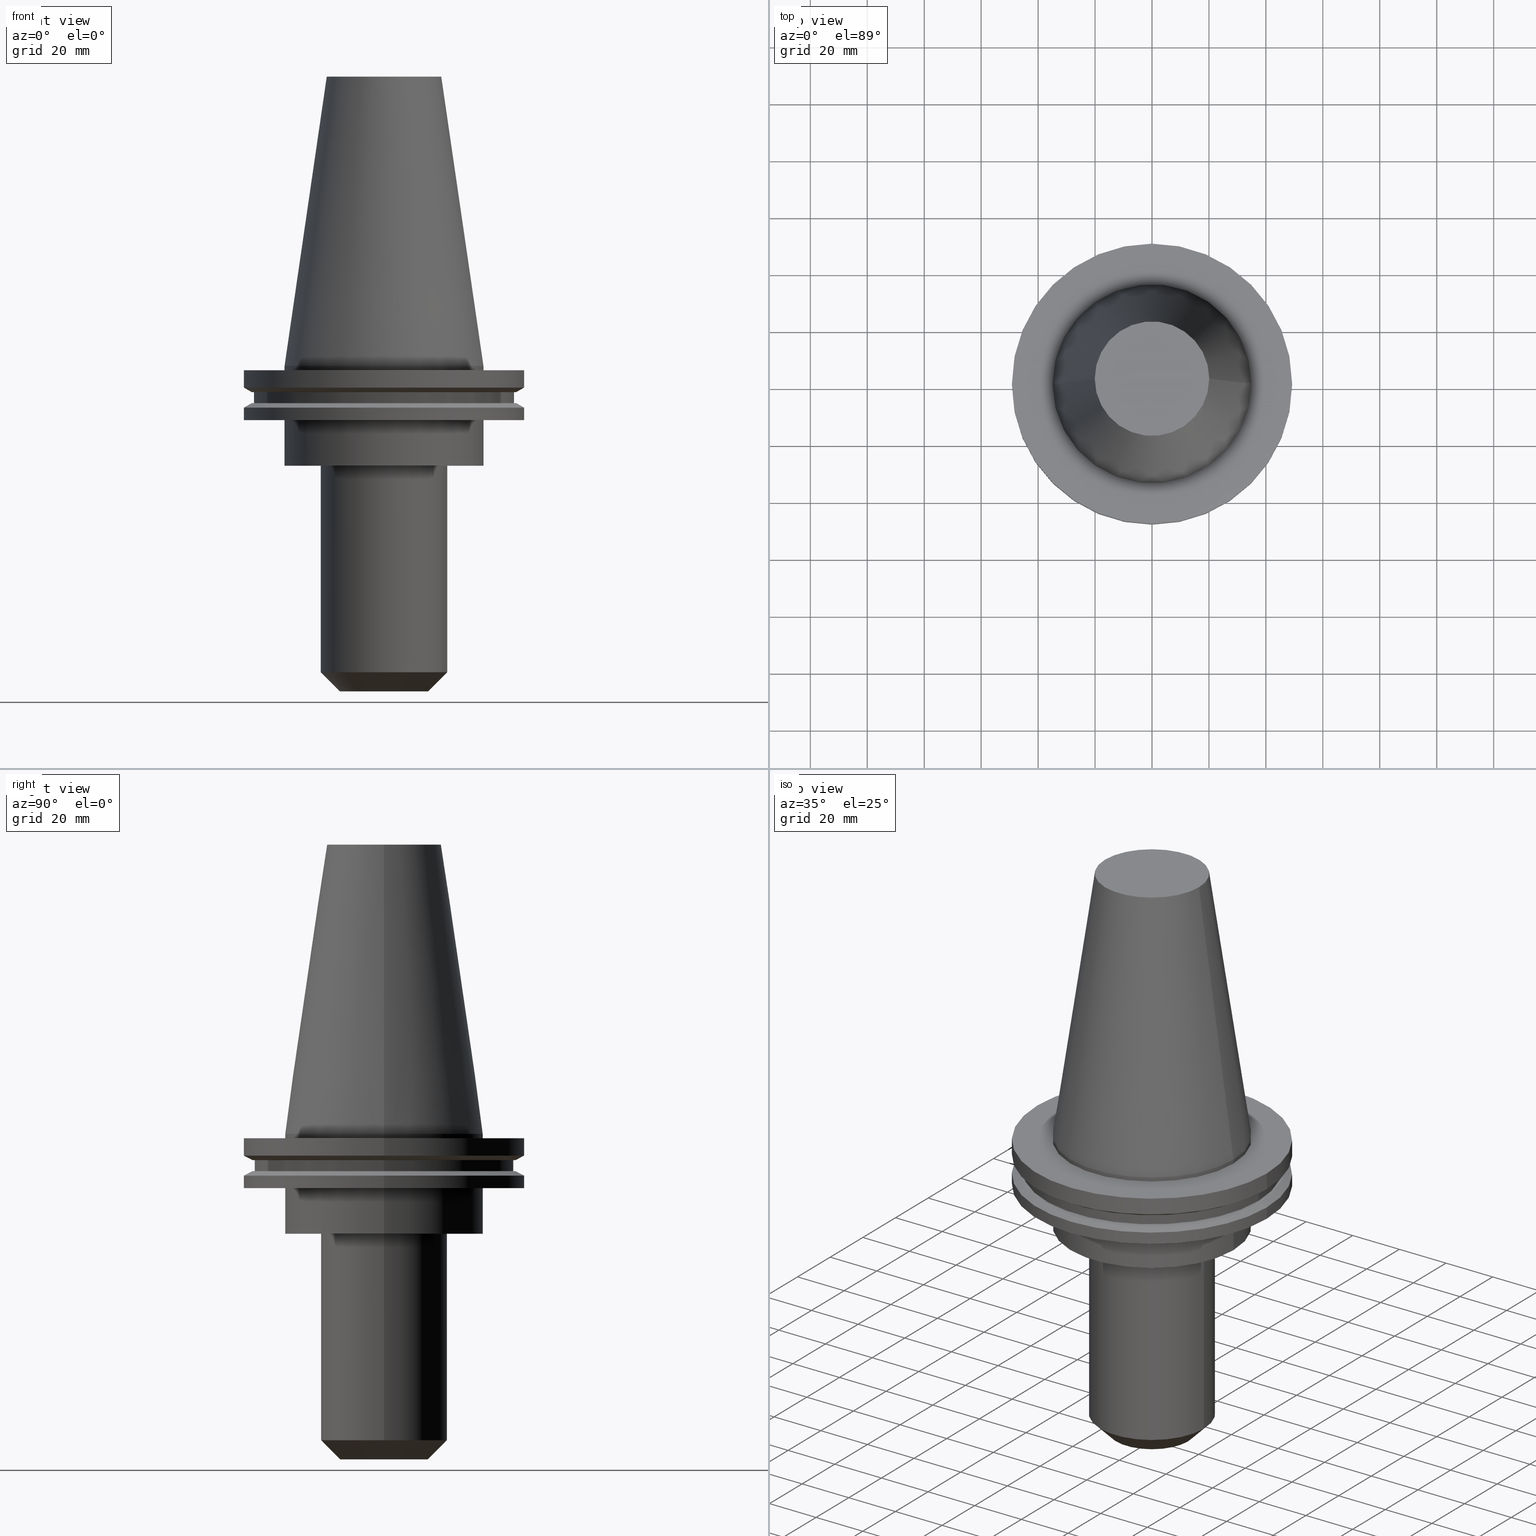
[diagram: canonical four-view strip — front | top / right | iso, engineering-drawing reading convention]
A machine part, canonical four-view strip (front | top / right | iso — engineering-drawing reading convention). The complete STEP part file that produces these views, byte-faithful:
ISO-10303-21;
HEADER;
FILE_DESCRIPTION (( 'STEP AP203' ),
    '1' );
FILE_NAME ('BCV50-EM_750-4_5.stp',
    '2022-03-03T16:44:57',
    ( '' ),
    ( '' ),
    'SwSTEP 2.0',
    'SolidWorks 2021',
    '' );
FILE_SCHEMA (( 'CONFIG_CONTROL_DESIGN' ));
ENDSEC;

DATA;
#1 = DIRECTION ( 'NONE',  ( -0.000000000000000000, -0.000000000000000000, 1.000000000000000000 ) ) ;
#2 = DIRECTION ( 'NONE',  ( -0.000000000000000000, -0.000000000000000000, 1.000000000000000000 ) ) ;
#3 = EDGE_LOOP ( 'NONE', ( #787, #19, #239, #236 ) ) ;
#4 = CARTESIAN_POINT ( 'NONE',  ( 0.000000000000000000, 0.000000000000000000, -19.04999999999999716 ) ) ;
#5 = EDGE_CURVE ( 'NONE', #225, #41, #525, .T. ) ;
#6 = VECTOR ( 'NONE', #253, 1000.000000000000000 ) ;
#7 = CARTESIAN_POINT ( 'NONE',  ( 0.000000000000000000, 0.000000000000000000, 101.5999999999999943 ) ) ;
#8 = PERSON_AND_ORGANIZATION_ROLE ( 'design_owner' ) ;
#9 = DIRECTION ( 'NONE',  ( -0.000000000000000000, -0.000000000000000000, 1.000000000000000000 ) ) ;
#10 = PERSON_AND_ORGANIZATION ( #803, #392 ) ;
#11 = EDGE_CURVE ( 'NONE', #772, #103, #732, .T. ) ;
#12 = CARTESIAN_POINT ( 'NONE',  ( 0.000000000000000000, 0.000000000000000000, -7.602389855251287187 ) ) ;
#13 = ORIENTED_EDGE ( 'NONE', *, *, #208, .F. ) ;
#14 = CARTESIAN_POINT ( 'NONE',  ( 0.000000000000000000, 0.000000000000000000, -14.65761014474876944 ) ) ;
#15 = PERSON_AND_ORGANIZATION ( #803, #392 ) ;
#16 = APPROVAL_PERSON_ORGANIZATION ( #10, #241, #282 ) ;
#17 = EDGE_CURVE ( 'NONE', #128, #108, #464, .T. ) ;
#18 = AXIS2_PLACEMENT_3D ( 'NONE', #462, #377, #409 ) ;
#19 = ORIENTED_EDGE ( 'NONE', *, *, #649, .T. ) ;
#20 = CIRCLE ( 'NONE', #130, 45.64500000000000313 ) ;
#21 = VERTEX_POINT ( 'NONE', #721 ) ;
#22 = DIRECTION ( 'NONE',  ( 0.000000000000000000, 0.000000000000000000, -1.000000000000000000 ) ) ;
#23 = ORIENTED_EDGE ( 'NONE', *, *, #303, .T. ) ;
#24 = EDGE_CURVE ( 'NONE', #25, #772, #390, .T. ) ;
#25 = VERTEX_POINT ( 'NONE', #712 ) ;
#26 = CARTESIAN_POINT ( 'NONE',  ( -15.52499999999998259, 1.901264155676263727E-15, -114.3000000000000114 ) ) ;
#27 = ORIENTED_EDGE ( 'NONE', *, *, #719, .T. ) ;
#28 = ADVANCED_FACE ( 'NONE', ( #655 ), #729, .F. ) ;
#29 = EDGE_LOOP ( 'NONE', ( #176, #23 ) ) ;
#30 = DIRECTION ( 'NONE',  ( -0.000000000000000000, -0.000000000000000000, 1.000000000000000000 ) ) ;
#31 = AXIS2_PLACEMENT_3D ( 'NONE', #186, #648, #381 ) ;
#32 = AXIS2_PLACEMENT_3D ( 'NONE', #141, #228, #752 ) ;
#33 = AXIS2_PLACEMENT_3D ( 'NONE', #323, #2, #521 ) ;
#34 = EDGE_LOOP ( 'NONE', ( #100, #573 ) ) ;
#35 = CARTESIAN_POINT ( 'NONE',  ( 15.52499999999998259, 0.000000000000000000, -114.3000000000000114 ) ) ;
#36 = ORIENTED_EDGE ( 'NONE', *, *, #119, .T. ) ;
#37 = DIRECTION ( 'NONE',  ( 0.1443082272672999988, 1.767266086135277066E-17, -0.9895327864921755756 ) ) ;
#38 = CALENDAR_DATE ( 2022, 3, 3 ) ;
#39 = ORIENTED_EDGE ( 'NONE', *, *, #477, .F. ) ;
#40 = CARTESIAN_POINT ( 'NONE',  ( 0.000000000000000000, 49.21499999999998920, -19.04999999999999716 ) ) ;
#41 = VERTEX_POINT ( 'NONE', #584 ) ;
#42 = ADVANCED_FACE ( 'NONE', ( #138 ), #304, .T. ) ;
#43 = DIRECTION ( 'NONE',  ( 1.000000000000000000, 0.000000000000000000, 0.000000000000000000 ) ) ;
#44 = APPROVAL_ROLE ( '' ) ;
#45 = CIRCLE ( 'NONE', #99, 45.64500000000000313 ) ;
#46 = EDGE_LOOP ( 'NONE', ( #536, #157 ) ) ;
#47 = FACE_OUTER_BOUND ( 'NONE', #34, .T. ) ;
#48 = DATE_AND_TIME ( #38, #596 ) ;
#49 = DIRECTION ( 'NONE',  ( 1.000000000000000000, 0.000000000000000000, 0.000000000000000000 ) ) ;
#50 = CARTESIAN_POINT ( 'NONE',  ( 0.000000000000000000, 0.000000000000000000, -14.65761014474876944 ) ) ;
#51 = FACE_OUTER_BOUND ( 'NONE', #566, .T. ) ;
#52 = COORDINATED_UNIVERSAL_TIME_OFFSET ( 6, 0, .BEHIND. ) ;
#53 = EDGE_CURVE ( 'NONE', #225, #312, #187, .T. ) ;
#54 = DIRECTION ( 'NONE',  ( 1.000000000000000000, 0.000000000000000000, 0.000000000000000000 ) ) ;
#55 = FACE_OUTER_BOUND ( 'NONE', #265, .T. ) ;
#56 = CIRCLE ( 'NONE', #216, 34.92499999999999005 ) ;
#57 = AXIS2_PLACEMENT_3D ( 'NONE', #709, #779, #183 ) ;
#58 = DIRECTION ( 'NONE',  ( -0.000000000000000000, -0.000000000000000000, 1.000000000000000000 ) ) ;
#59 = DIRECTION ( 'NONE',  ( -0.000000000000000000, -0.000000000000000000, 1.000000000000000000 ) ) ;
#60 = CIRCLE ( 'NONE', #470, 9.524999999999989697 ) ;
#61 = EDGE_CURVE ( 'NONE', #632, #359, #672, .T. ) ;
#62 = DIRECTION ( 'NONE',  ( -0.000000000000000000, -0.000000000000000000, 1.000000000000000000 ) ) ;
#63 = PLANE ( 'NONE',  #122 ) ;
#64 = VERTEX_POINT ( 'NONE', #527 ) ;
#65 = LINE ( 'NONE', #466, #406 ) ;
#66 = PLANE ( 'NONE',  #78 ) ;
#67 = FACE_OUTER_BOUND ( 'NONE', #293, .T. ) ;
#68 = ORIENTED_EDGE ( 'NONE', *, *, #635, .F. ) ;
#69 = CARTESIAN_POINT ( 'NONE',  ( -22.22499999999999432, 2.721777511104992060E-15, -35.04999999999999716 ) ) ;
#70 = DIRECTION ( 'NONE',  ( 1.000000000000000000, 0.000000000000000000, 0.000000000000000000 ) ) ;
#71 = DIRECTION ( 'NONE',  ( -0.000000000000000000, -0.000000000000000000, 1.000000000000000000 ) ) ;
#72 = AXIS2_PLACEMENT_3D ( 'NONE', #837, #759, #102 ) ;
#73 = AXIS2_PLACEMENT_3D ( 'NONE', #785, #59, #328 ) ;
#74 = CARTESIAN_POINT ( 'NONE',  ( 0.000000000000000000, 0.000000000000000000, 101.5999999999999943 ) ) ;
#75 = EDGE_CURVE ( 'NONE', #310, #754, #538, .T. ) ;
#76 = CARTESIAN_POINT ( 'NONE',  ( 0.000000000000000000, 0.000000000000000000, -114.3000000000000114 ) ) ;
#77 = PLANE ( 'NONE',  #285 ) ;
#78 = AXIS2_PLACEMENT_3D ( 'NONE', #581, #263, #513 ) ;
#79 = AXIS2_PLACEMENT_3D ( 'NONE', #124, #778, #132 ) ;
#80 = CYLINDRICAL_SURFACE ( 'NONE', #668, 34.92499999999999005 ) ;
#81 = ORIENTED_EDGE ( 'NONE', *, *, #649, .F. ) ;
#82 = APPROVAL ( #718, 'UNSPECIFIED' ) ;
#83 = DIRECTION ( 'NONE',  ( -0.000000000000000000, -0.000000000000000000, 1.000000000000000000 ) ) ;
#84 = CARTESIAN_POINT ( 'NONE',  ( -46.43919780457007818, 5.857130358318727293E-15, -9.204999999999991189 ) ) ;
#85 = ORIENTED_EDGE ( 'NONE', *, *, #147, .F. ) ;
#86 = DIRECTION ( 'NONE',  ( 0.000000000000000000, 0.000000000000000000, -1.000000000000000000 ) ) ;
#87 = EDGE_CURVE ( 'NONE', #164, #312, #568, .T. ) ;
#88 = VECTOR ( 'NONE', #163, 1000.000000000000000 ) ;
#89 = ORIENTED_EDGE ( 'NONE', *, *, #450, .F. ) ;
#90 = EDGE_LOOP ( 'NONE', ( #623, #273, #523, #529 ) ) ;
#91 = FACE_BOUND ( 'NONE', #417, .T. ) ;
#92 = ADVANCED_FACE ( 'NONE', ( #397, #180 ), #63, .F. ) ;
#93 = ORIENTED_EDGE ( 'NONE', *, *, #419, .T. ) ;
#94 = EDGE_LOOP ( 'NONE', ( #826, #683, #707, #422 ) ) ;
#95 = DIRECTION ( 'NONE',  ( -1.000000000000000000, 0.000000000000000000, 0.000000000000000000 ) ) ;
#96 = VERTEX_POINT ( 'NONE', #515 ) ;
#97 = CARTESIAN_POINT ( 'NONE',  ( -49.21499999999998920, 6.027099222003697037E-15, -14.65761014474876944 ) ) ;
#98 = CC_DESIGN_APPROVAL ( #199, ( #341 ) ) ;
#99 = AXIS2_PLACEMENT_3D ( 'NONE', #580, #387, #770 ) ;
#100 = ORIENTED_EDGE ( 'NONE', *, *, #854, .F. ) ;
#101 = ADVANCED_FACE ( 'NONE', ( #195 ), #255, .F. ) ;
#102 = DIRECTION ( 'NONE',  ( -1.000000000000000000, 0.000000000000000000, 0.000000000000000000 ) ) ;
#103 = VERTEX_POINT ( 'NONE', #271 ) ;
#104 = LINE ( 'NONE', #774, #738 ) ;
#105 = ORIENTED_EDGE ( 'NONE', *, *, #667, .T. ) ;
#106 = DIRECTION ( 'NONE',  ( -0.000000000000000000, -0.000000000000000000, 1.000000000000000000 ) ) ;
#107 = PERSON_AND_ORGANIZATION ( #803, #392 ) ;
#108 = VERTEX_POINT ( 'NONE', #532 ) ;
#109 = LINE ( 'NONE', #26, #576 ) ;
#110 = ORIENTED_EDGE ( 'NONE', *, *, #308, .F. ) ;
#111 = ADVANCED_FACE ( 'NONE', ( #318, #401 ), #66, .F. ) ;
#112 = LOCAL_TIME ( 10, 44, 57.00000000000000000, #452 ) ;
#113 = CARTESIAN_POINT ( 'NONE',  ( 0.000000000000000000, 0.000000000000000000, 101.5999999999999943 ) ) ;
#114 = DATE_AND_TIME ( #771, #664 ) ;
#115 = VECTOR ( 'NONE', #343, 1000.000000000000000 ) ;
#116 = CIRCLE ( 'NONE', #598, 49.21499999999999631 ) ;
#117 = AXIS2_PLACEMENT_3D ( 'NONE', #447, #320, #259 ) ;
#118 = DIRECTION ( 'NONE',  ( 1.000000000000000000, 0.000000000000000000, 0.000000000000000000 ) ) ;
#119 = EDGE_CURVE ( 'NONE', #334, #231, #442, .T. ) ;
#120 = CYLINDRICAL_SURFACE ( 'NONE', #172, 49.21499999999999631 ) ;
#121 = DATE_TIME_ROLE ( 'classification_date' ) ;
#122 = AXIS2_PLACEMENT_3D ( 'NONE', #459, #322, #847 ) ;
#123 = AXIS2_PLACEMENT_3D ( 'NONE', #651, #58, #49 ) ;
#124 = CARTESIAN_POINT ( 'NONE',  ( 0.000000000000000000, 0.000000000000000000, 0.000000000000000000 ) ) ;
#125 = DIRECTION ( 'NONE',  ( 1.000000000000000000, 0.000000000000000000, 0.000000000000000000 ) ) ;
#126 = APPROVAL_DATE_TIME ( #114, #82 ) ;
#127 = FACE_OUTER_BOUND ( 'NONE', #637, .T. ) ;
#128 = VERTEX_POINT ( 'NONE', #784 ) ;
#129 = CARTESIAN_POINT ( 'NONE',  ( 9.524999999999995026, 0.000000000000000000, -114.2999999999999972 ) ) ;
#130 = AXIS2_PLACEMENT_3D ( 'NONE', #680, #686, #601 ) ;
#131 = AXIS2_PLACEMENT_3D ( 'NONE', #849, #654, #266 ) ;
#132 = DIRECTION ( 'NONE',  ( -1.000000000000000000, 0.000000000000000000, 0.000000000000000000 ) ) ;
#133 = CYLINDRICAL_SURFACE ( 'NONE', #171, 34.92499999999999005 ) ;
#134 = VERTEX_POINT ( 'NONE', #191 ) ;
#135 = AXIS2_PLACEMENT_3D ( 'NONE', #753, #361, #685 ) ;
#136 = FACE_OUTER_BOUND ( 'NONE', #743, .T. ) ;
#137 = LINE ( 'NONE', #556, #88 ) ;
#138 = FACE_OUTER_BOUND ( 'NONE', #696, .T. ) ;
#139 = AXIS2_PLACEMENT_3D ( 'NONE', #257, #790, #118 ) ;
#140 = CARTESIAN_POINT ( 'NONE',  ( 0.000000000000000000, 0.000000000000000000, 101.5999999999999943 ) ) ;
#141 = CARTESIAN_POINT ( 'NONE',  ( 0.000000000000000000, 0.000000000000000000, 0.000000000000000000 ) ) ;
#142 = ADVANCED_FACE ( 'NONE', ( #127, #278 ), #804, .F. ) ;
#143 = CYLINDRICAL_SURFACE ( 'NONE', #219, 45.64500000000000313 ) ;
#144 = CARTESIAN_POINT ( 'NONE',  ( -49.21499999999999631, 6.027099222003697826E-15, -1.499999999999987566 ) ) ;
#145 = CONICAL_SURFACE ( 'NONE', #461, 49.21499999999998920, 1.047197551196554333 ) ;
#146 = DIRECTION ( 'NONE',  ( -0.000000000000000000, -0.000000000000000000, 1.000000000000000000 ) ) ;
#147 = EDGE_CURVE ( 'NONE', #21, #284, #731, .T. ) ;
#148 = ORIENTED_EDGE ( 'NONE', *, *, #557, .F. ) ;
#149 = EDGE_CURVE ( 'NONE', #484, #440, #554, .T. ) ;
#150 = DIRECTION ( 'NONE',  ( 0.000000000000000000, -0.000000000000000000, 1.000000000000000000 ) ) ;
#151 =( NAMED_UNIT ( * ) PLANE_ANGLE_UNIT ( ) SI_UNIT ( $, .RADIAN. ) );
#152 = EDGE_LOOP ( 'NONE', ( #687, #27, #608, #838 ) ) ;
#153 = CARTESIAN_POINT ( 'NONE',  ( 20.10819343178871321, 3.369811209154858606E-15, 101.5999999999999801 ) ) ;
#154 = EDGE_LOOP ( 'NONE', ( #105, #351 ) ) ;
#155 = ADVANCED_FACE ( 'NONE', ( #223 ), #360, .T. ) ;
#156 = APPLICATION_CONTEXT ( 'configuration controlled 3d designs of mechanical parts and assemblies' ) ;
#157 = ORIENTED_EDGE ( 'NONE', *, *, #87, .T. ) ;
#158 = VERTEX_POINT ( 'NONE', #677 ) ;
#159 = DIRECTION ( 'NONE',  ( -0.000000000000000000, -0.000000000000000000, 1.000000000000000000 ) ) ;
#160 = CARTESIAN_POINT ( 'NONE',  ( -22.22499999999999787, 2.721777511104992849E-15, -107.5999999999999943 ) ) ;
#161 = AXIS2_PLACEMENT_3D ( 'NONE', #855, #380, #644 ) ;
#162 = EDGE_LOOP ( 'NONE', ( #681, #305, #372, #726 ) ) ;
#163 = DIRECTION ( 'NONE',  ( -0.000000000000000000, -0.000000000000000000, 1.000000000000000000 ) ) ;
#164 = VERTEX_POINT ( 'NONE', #144 ) ;
#165 = CARTESIAN_POINT ( 'NONE',  ( 0.000000000000000000, 0.000000000000000000, -114.3000000000000114 ) ) ;
#166 = APPROVAL_ROLE ( '' ) ;
#167 = ORIENTED_EDGE ( 'NONE', *, *, #489, .F. ) ;
#168 = DIRECTION ( 'NONE',  ( -0.000000000000000000, -0.000000000000000000, 1.000000000000000000 ) ) ;
#169 = ORIENTED_EDGE ( 'NONE', *, *, #75, .T. ) ;
#170 = FACE_OUTER_BOUND ( 'NONE', #307, .T. ) ;
#171 = AXIS2_PLACEMENT_3D ( 'NONE', #398, #533, #582 ) ;
#172 = AXIS2_PLACEMENT_3D ( 'NONE', #113, #383, #414 ) ;
#173 = ORIENTED_EDGE ( 'NONE', *, *, #512, .F. ) ;
#174 = DIRECTION ( 'NONE',  ( 1.000000000000000000, 0.000000000000000000, 0.000000000000000000 ) ) ;
#175 = EDGE_LOOP ( 'NONE', ( #362, #230 ) ) ;
#176 = ORIENTED_EDGE ( 'NONE', *, *, #557, .T. ) ;
#177 = CARTESIAN_POINT ( 'NONE',  ( 22.22499999999999432, 0.000000000000000000, -35.04999999999999716 ) ) ;
#178 = ORIENTED_EDGE ( 'NONE', *, *, #419, .F. ) ;
#179 = DIRECTION ( 'NONE',  ( 1.000000000000000000, 0.000000000000000000, 0.000000000000000000 ) ) ;
#180 = FACE_BOUND ( 'NONE', #29, .T. ) ;
#181 = CC_DESIGN_DATE_AND_TIME_ASSIGNMENT ( #48, #121, ( #393 ) ) ;
#182 = ORIENTED_EDGE ( 'NONE', *, *, #264, .T. ) ;
#183 = DIRECTION ( 'NONE',  ( 1.000000000000000000, 0.000000000000000000, 0.000000000000000000 ) ) ;
#184 = AXIS2_PLACEMENT_3D ( 'NONE', #704, #375, #316 ) ;
#185 = CIRCLE ( 'NONE', #326, 49.21499999999998920 ) ;
#186 = CARTESIAN_POINT ( 'NONE',  ( 0.000000000000000000, 46.43919780457007818, -9.204999999999998295 ) ) ;
#187 = LINE ( 'NONE', #725, #453 ) ;
#188 = ORIENTED_EDGE ( 'NONE', *, *, #661, .T. ) ;
#189 = EDGE_CURVE ( 'NONE', #329, #227, #201, .T. ) ;
#190 = DIRECTION ( 'NONE',  ( -0.000000000000000000, -0.000000000000000000, 1.000000000000000000 ) ) ;
#191 = CARTESIAN_POINT ( 'NONE',  ( 34.92499999999999716, 0.000000000000000000, -35.04999999999999716 ) ) ;
#192 = ORIENTED_EDGE ( 'NONE', *, *, #600, .F. ) ;
#193 = CARTESIAN_POINT ( 'NONE',  ( 0.000000000000000000, 0.000000000000000000, -35.04999999999999716 ) ) ;
#194 = EDGE_CURVE ( 'NONE', #312, #164, #116, .T. ) ;
#195 = FACE_OUTER_BOUND ( 'NONE', #154, .T. ) ;
#196 = CARTESIAN_POINT ( 'NONE',  ( 0.000000000000000000, 0.000000000000000000, 101.5999999999999943 ) ) ;
#197 = ORIENTED_EDGE ( 'NONE', *, *, #444, .F. ) ;
#198 = DIRECTION ( 'NONE',  ( -0.000000000000000000, -0.000000000000000000, 1.000000000000000000 ) ) ;
#199 = APPROVAL ( #233, 'UNSPECIFIED' ) ;
#200 = CARTESIAN_POINT ( 'NONE',  ( 34.92499999999999716, 0.000000000000000000, -19.04999999999999716 ) ) ;
#201 = CIRCLE ( 'NONE', #796, 49.21499999999998920 ) ;
#202 = DIRECTION ( 'NONE',  ( 1.000000000000000000, 0.000000000000000000, 0.000000000000000000 ) ) ;
#203 = CYLINDRICAL_SURFACE ( 'NONE', #548, 49.21499999999999631 ) ;
#204 = DIRECTION ( 'NONE',  ( -0.000000000000000000, -0.000000000000000000, 1.000000000000000000 ) ) ;
#205 = CARTESIAN_POINT ( 'NONE',  ( 34.92499999999999005, 0.000000000000000000, -1.499999999999987566 ) ) ;
#206 = DIRECTION ( 'NONE',  ( -0.000000000000000000, -0.000000000000000000, 1.000000000000000000 ) ) ;
#207 = APPLICATION_PROTOCOL_DEFINITION ( 'international standard', 'config_control_design', 1994, #156 ) ;
#208 = EDGE_CURVE ( 'NONE', #317, #334, #235, .T. ) ;
#209 = FACE_OUTER_BOUND ( 'NONE', #750, .T. ) ;
#210 = DESIGN_CONTEXT ( 'detailed design', #832, 'design' ) ;
#211 = DIRECTION ( 'NONE',  ( 1.000000000000000000, 0.000000000000000000, 0.000000000000000000 ) ) ;
#212 = APPLICATION_PROTOCOL_DEFINITION ( 'international standard', 'config_control_design', 1994, #832 ) ;
#213 = EDGE_CURVE ( 'NONE', #616, #329, #609, .T. ) ;
#214 = DIRECTION ( 'NONE',  ( -0.000000000000000000, -0.000000000000000000, 1.000000000000000000 ) ) ;
#215 = ORIENTED_EDGE ( 'NONE', *, *, #61, .F. ) ;
#216 = AXIS2_PLACEMENT_3D ( 'NONE', #408, #671, #283 ) ;
#217 = CALENDAR_DATE ( 2022, 3, 3 ) ;
#218 = CIRCLE ( 'NONE', #117, 20.10819343178871321 ) ;
#219 = AXIS2_PLACEMENT_3D ( 'NONE', #798, #204, #465 ) ;
#220 = CYLINDRICAL_SURFACE ( 'NONE', #503, 49.21499999999998920 ) ;
#221 = ADVANCED_FACE ( 'NONE', ( #170 ), #299, .T. ) ;
#222 = ORIENTED_EDGE ( 'NONE', *, *, #679, .T. ) ;
#223 = FACE_OUTER_BOUND ( 'NONE', #376, .T. ) ;
#224 = DIRECTION ( 'NONE',  ( -1.000000000000000000, 0.000000000000000000, -0.000000000000000000 ) ) ;
#225 = VERTEX_POINT ( 'NONE', #621 ) ;
#226 = CARTESIAN_POINT ( 'NONE',  ( 9.524999999999989697, 0.000000000000000000, -35.04999999999999716 ) ) ;
#227 = VERTEX_POINT ( 'NONE', #827 ) ;
#228 = DIRECTION ( 'NONE',  ( -0.000000000000000000, -0.000000000000000000, 1.000000000000000000 ) ) ;
#229 = DIRECTION ( 'NONE',  ( 1.000000000000000000, 0.000000000000000000, 0.000000000000000000 ) ) ;
#230 = ORIENTED_EDGE ( 'NONE', *, *, #723, .T. ) ;
#231 = VERTEX_POINT ( 'NONE', #439 ) ;
#232 = FACE_OUTER_BOUND ( 'NONE', #775, .T. ) ;
#233 = APPROVAL_STATUS ( 'not_yet_approved' ) ;
#234 = VECTOR ( 'NONE', #850, 1000.000000000000000 ) ;
#235 = CIRCLE ( 'NONE', #546, 15.52499999999998259 ) ;
#236 = ORIENTED_EDGE ( 'NONE', *, *, #87, .F. ) ;
#237 = DIRECTION ( 'NONE',  ( -0.000000000000000000, -0.000000000000000000, 1.000000000000000000 ) ) ;
#238 = ADVANCED_FACE ( 'NONE', ( #492 ), #653, .T. ) ;
#239 = ORIENTED_EDGE ( 'NONE', *, *, #53, .T. ) ;
#240 = DIRECTION ( 'NONE',  ( -1.000000000000000000, 0.000000000000000000, 0.000000000000000000 ) ) ;
#241 = APPROVAL ( #673, 'UNSPECIFIED' ) ;
#242 = ORIENTED_EDGE ( 'NONE', *, *, #149, .T. ) ;
#243 = CARTESIAN_POINT ( 'NONE',  ( 0.000000000000000000, 0.000000000000000000, -9.204999999999991189 ) ) ;
#244 = ORIENTED_EDGE ( 'NONE', *, *, #296, .F. ) ;
#245 = AXIS2_PLACEMENT_3D ( 'NONE', #737, #146, #675 ) ;
#246 = AXIS2_PLACEMENT_3D ( 'NONE', #499, #830, #507 ) ;
#247 = CIRCLE ( 'NONE', #73, 22.22499999999999787 ) ;
#248 = PERSON_AND_ORGANIZATION ( #803, #392 ) ;
#249 = EDGE_LOOP ( 'NONE', ( #593, #840, #674, #415 ) ) ;
#250 = EDGE_CURVE ( 'NONE', #692, #96, #682, .T. ) ;
#251 = FACE_OUTER_BOUND ( 'NONE', #413, .T. ) ;
#252 = ORIENTED_EDGE ( 'NONE', *, *, #147, .T. ) ;
#253 = DIRECTION ( 'NONE',  ( 0.8660254037844273833, 0.000000000000000000, 0.5000000000000195399 ) ) ;
#254 = EDGE_CURVE ( 'NONE', #692, #284, #757, .T. ) ;
#255 = PLANE ( 'NONE',  #852 ) ;
#256 = CARTESIAN_POINT ( 'NONE',  ( 34.92499999999999716, 0.000000000000000000, 101.5999999999999943 ) ) ;
#257 = CARTESIAN_POINT ( 'NONE',  ( 0.000000000000000000, 0.000000000000000000, -35.04999999999999716 ) ) ;
#258 = EDGE_LOOP ( 'NONE', ( #244, #13 ) ) ;
#259 = DIRECTION ( 'NONE',  ( 1.000000000000000000, 0.000000000000000000, 0.000000000000000000 ) ) ;
#260 = CIRCLE ( 'NONE', #824, 34.92499999999999716 ) ;
#261 = VECTOR ( 'NONE', #9, 1000.000000000000000 ) ;
#262 = DIRECTION ( 'NONE',  ( 1.000000000000000000, 0.000000000000000000, 0.000000000000000000 ) ) ;
#263 = DIRECTION ( 'NONE',  ( 0.000000000000000000, 0.000000000000000000, -1.000000000000000000 ) ) ;
#264 = EDGE_CURVE ( 'NONE', #231, #813, #627, .T. ) ;
#265 = EDGE_LOOP ( 'NONE', ( #197, #188, #543, #676 ) ) ;
#266 = DIRECTION ( 'NONE',  ( 1.000000000000000000, 0.000000000000000000, 0.000000000000000000 ) ) ;
#267 = DIRECTION ( 'NONE',  ( -0.000000000000000000, -0.000000000000000000, 1.000000000000000000 ) ) ;
#268 = DIRECTION ( 'NONE',  ( -0.000000000000000000, -0.000000000000000000, 1.000000000000000000 ) ) ;
#269 = ORIENTED_EDGE ( 'NONE', *, *, #24, .T. ) ;
#270 = DIRECTION ( 'NONE',  ( -0.000000000000000000, -0.000000000000000000, 1.000000000000000000 ) ) ;
#271 = CARTESIAN_POINT ( 'NONE',  ( 45.64500000000000313, 0.000000000000000000, -9.204999999999991189 ) ) ;
#272 = DIRECTION ( 'NONE',  ( -0.000000000000000000, -0.000000000000000000, 1.000000000000000000 ) ) ;
#273 = ORIENTED_EDGE ( 'NONE', *, *, #335, .T. ) ;
#274 = CARTESIAN_POINT ( 'NONE',  ( 49.21499999999998920, 6.027099222003697037E-15, -14.65761014474876944 ) ) ;
#275 = EDGE_CURVE ( 'NONE', #158, #21, #104, .T. ) ;
#276 = AXIS2_PLACEMENT_3D ( 'NONE', #243, #762, #364 ) ;
#277 = DIRECTION ( 'NONE',  ( 1.000000000000000000, 0.000000000000000000, 0.000000000000000000 ) ) ;
#278 = FACE_BOUND ( 'NONE', #456, .T. ) ;
#279 = CARTESIAN_POINT ( 'NONE',  ( -45.64500000000000313, 5.589900314708094957E-15, -9.204999999999991189 ) ) ;
#280 = DIRECTION ( 'NONE',  ( -0.000000000000000000, -0.000000000000000000, 1.000000000000000000 ) ) ;
#281 = UNCERTAINTY_MEASURE_WITH_UNIT (LENGTH_MEASURE( 1.000000000000000082E-05 ), #670, 'distance_accuracy_value', 'NONE');
#282 = APPROVAL_ROLE ( '' ) ;
#283 = DIRECTION ( 'NONE',  ( 1.000000000000000000, 0.000000000000000000, 0.000000000000000000 ) ) ;
#284 = VERTEX_POINT ( 'NONE', #429 ) ;
#285 = AXIS2_PLACEMENT_3D ( 'NONE', #416, #22, #224 ) ;
#286 = CARTESIAN_POINT ( 'NONE',  ( -49.21499999999998920, 0.000000000000000000, -14.65761014474876944 ) ) ;
#287 = FACE_OUTER_BOUND ( 'NONE', #369, .T. ) ;
#288 =( GEOMETRIC_REPRESENTATION_CONTEXT ( 3 ) GLOBAL_UNCERTAINTY_ASSIGNED_CONTEXT ( ( #281 ) ) GLOBAL_UNIT_ASSIGNED_CONTEXT ( ( #670, #151, #805 ) ) REPRESENTATION_CONTEXT ( 'NONE', 'WORKASPACE' ) );
#289 = ADVANCED_FACE ( 'NONE', ( #251 ), #145, .T. ) ;
#290 = ORIENTED_EDGE ( 'NONE', *, *, #590, .T. ) ;
#291 = DIRECTION ( 'NONE',  ( 1.000000000000000000, 0.000000000000000000, 0.000000000000000000 ) ) ;
#292 = ORIENTED_EDGE ( 'NONE', *, *, #765, .F. ) ;
#293 = EDGE_LOOP ( 'NONE', ( #222, #630, #817, #475 ) ) ;
#294 = DIRECTION ( 'NONE',  ( -0.7071067811865477948, 8.659560562354936556E-17, 0.7071067811865473507 ) ) ;
#295 = FACE_OUTER_BOUND ( 'NONE', #487, .T. ) ;
#296 = EDGE_CURVE ( 'NONE', #334, #317, #340, .T. ) ;
#297 = LINE ( 'NONE', #302, #727 ) ;
#298 = CONICAL_SURFACE ( 'NONE', #395, 49.21499999999998920, 1.047197551196554333 ) ;
#299 = CONICAL_SURFACE ( 'NONE', #276, 46.43919780457007818, 1.047197551196575205 ) ;
#300 = AXIS2_PLACEMENT_3D ( 'NONE', #792, #198, #460 ) ;
#301 = ORIENTED_EDGE ( 'NONE', *, *, #275, .T. ) ;
#302 = CARTESIAN_POINT ( 'NONE',  ( 34.92499999999999005, 4.277078946022130098E-15, 0.000000000000000000 ) ) ;
#303 = EDGE_CURVE ( 'NONE', #491, #484, #472, .T. ) ;
#304 = CONICAL_SURFACE ( 'NONE', #79, 34.92499999999999005, 0.1448138465474119452 ) ;
#305 = ORIENTED_EDGE ( 'NONE', *, *, #618, .T. ) ;
#306 = LINE ( 'NONE', #570, #697 ) ;
#307 = EDGE_LOOP ( 'NONE', ( #374, #290, #742, #81 ) ) ;
#308 = EDGE_CURVE ( 'NONE', #231, #310, #625, .T. ) ;
#309 = PERSON_AND_ORGANIZATION_ROLE ( 'creator' ) ;
#310 = VERTEX_POINT ( 'NONE', #177 ) ;
#311 = CARTESIAN_POINT ( 'NONE',  ( -15.52499999999998259, 2.311520833390627894E-15, -114.3000000000000114 ) ) ;
#312 = VERTEX_POINT ( 'NONE', #423 ) ;
#313 = VECTOR ( 'NONE', #747, 1000.000000000000114 ) ;
#314 = ADVANCED_FACE ( 'NONE', ( #559, #822 ), #434, .F. ) ;
#315 = AXIS2_PLACEMENT_3D ( 'NONE', #331, #451, #457 ) ;
#316 = DIRECTION ( 'NONE',  ( 1.000000000000000000, 0.000000000000000000, 0.000000000000000000 ) ) ;
#317 = VERTEX_POINT ( 'NONE', #311 ) ;
#318 = FACE_BOUND ( 'NONE', #835, .T. ) ;
#319 = FACE_OUTER_BOUND ( 'NONE', #498, .T. ) ;
#320 = DIRECTION ( 'NONE',  ( -0.000000000000000000, -0.000000000000000000, 1.000000000000000000 ) ) ;
#321 = DATE_AND_TIME ( #437, #112 ) ;
#322 = DIRECTION ( 'NONE',  ( 0.000000000000000000, -0.000000000000000000, 1.000000000000000000 ) ) ;
#323 = CARTESIAN_POINT ( 'NONE',  ( 0.000000000000000000, 0.000000000000000000, -114.3000000000000114 ) ) ;
#324 = FACE_OUTER_BOUND ( 'NONE', #420, .T. ) ;
#325 = AXIS2_PLACEMENT_3D ( 'NONE', #421, #561, #427 ) ;
#326 = AXIS2_PLACEMENT_3D ( 'NONE', #50, #268, #660 ) ;
#327 = DIRECTION ( 'NONE',  ( -0.000000000000000000, -0.000000000000000000, 1.000000000000000000 ) ) ;
#328 = DIRECTION ( 'NONE',  ( 1.000000000000000000, 0.000000000000000000, 0.000000000000000000 ) ) ;
#329 = VERTEX_POINT ( 'NONE', #97 ) ;
#330 = ADVANCED_FACE ( 'NONE', ( #366 ), #298, .T. ) ;
#331 = CARTESIAN_POINT ( 'NONE',  ( 0.000000000000000000, 0.000000000000000000, 0.000000000000000000 ) ) ;
#332 = VECTOR ( 'NONE', #592, 1000.000000000000000 ) ;
#333 = DIRECTION ( 'NONE',  ( 0.000000000000000000, 0.000000000000000000, -1.000000000000000000 ) ) ;
#334 = VERTEX_POINT ( 'NONE', #35 ) ;
#335 = EDGE_CURVE ( 'NONE', #634, #284, #297, .T. ) ;
#336 = DIRECTION ( 'NONE',  ( 1.000000000000000000, 0.000000000000000000, 0.000000000000000000 ) ) ;
#337 = DIRECTION ( 'NONE',  ( 1.000000000000000000, 0.000000000000000000, 0.000000000000000000 ) ) ;
#338 = LINE ( 'NONE', #662, #586 ) ;
#339 = CC_DESIGN_PERSON_AND_ORGANIZATION_ASSIGNMENT ( #248, #448, ( #341 ) ) ;
#340 = CIRCLE ( 'NONE', #535, 15.52499999999998259 ) ;
#341 = PRODUCT_DEFINITION_FORMATION_WITH_SPECIFIED_SOURCE ( 'ANY', '', #562, .NOT_KNOWN. ) ;
#342 = DIRECTION ( 'NONE',  ( 1.000000000000000000, 0.000000000000000000, 0.000000000000000000 ) ) ;
#343 = DIRECTION ( 'NONE',  ( -0.000000000000000000, -0.000000000000000000, 1.000000000000000000 ) ) ;
#344 = DIRECTION ( 'NONE',  ( -0.000000000000000000, -0.000000000000000000, 1.000000000000000000 ) ) ;
#345 = CARTESIAN_POINT ( 'NONE',  ( 0.000000000000000000, 0.000000000000000000, 0.000000000000000000 ) ) ;
#346 = AXIS2_PLACEMENT_3D ( 'NONE', #643, #715, #455 ) ;
#347 = DIRECTION ( 'NONE',  ( 1.000000000000000000, 0.000000000000000000, 0.000000000000000000 ) ) ;
#348 = ORIENTED_EDGE ( 'NONE', *, *, #208, .T. ) ;
#349 = FACE_OUTER_BOUND ( 'NONE', #175, .T. ) ;
#350 = EDGE_CURVE ( 'NONE', #632, #227, #306, .T. ) ;
#351 = ORIENTED_EDGE ( 'NONE', *, *, #552, .T. ) ;
#352 = FACE_OUTER_BOUND ( 'NONE', #391, .T. ) ;
#353 = ORIENTED_EDGE ( 'NONE', *, *, #11, .T. ) ;
#354 = DIRECTION ( 'NONE',  ( -0.000000000000000000, -0.000000000000000000, 1.000000000000000000 ) ) ;
#355 = AXIS2_PLACEMENT_3D ( 'NONE', #641, #106, #125 ) ;
#356 = CC_DESIGN_DATE_AND_TIME_ASSIGNMENT ( #560, #758, ( #504 ) ) ;
#357 = AXIS2_PLACEMENT_3D ( 'NONE', #678, #354, #342 ) ;
#358 = ORIENTED_EDGE ( 'NONE', *, *, #540, .F. ) ;
#359 = VERTEX_POINT ( 'NONE', #706 ) ;
#360 = CYLINDRICAL_SURFACE ( 'NONE', #32, 22.22499999999999432 ) ;
#361 = DIRECTION ( 'NONE',  ( -0.000000000000000000, -0.000000000000000000, 1.000000000000000000 ) ) ;
#362 = ORIENTED_EDGE ( 'NONE', *, *, #600, .T. ) ;
#363 = ORIENTED_EDGE ( 'NONE', *, *, #61, .T. ) ;
#364 = DIRECTION ( 'NONE',  ( 1.000000000000000000, 0.000000000000000000, 0.000000000000000000 ) ) ;
#365 = PERSON_AND_ORGANIZATION ( #803, #392 ) ;
#366 = FACE_OUTER_BOUND ( 'NONE', #94, .T. ) ;
#367 = CIRCLE ( 'NONE', #355, 45.64500000000000313 ) ;
#368 = VECTOR ( 'NONE', #733, 1000.000000000000114 ) ;
#369 = EDGE_LOOP ( 'NONE', ( #652, #269, #292, #178 ) ) ;
#370 = DIRECTION ( 'NONE',  ( 1.000000000000000000, 0.000000000000000000, 0.000000000000000000 ) ) ;
#371 = EDGE_CURVE ( 'NONE', #317, #813, #109, .T. ) ;
#372 = ORIENTED_EDGE ( 'NONE', *, *, #741, .T. ) ;
#373 = DIRECTION ( 'NONE',  ( -0.1443082272672999988, 0.000000000000000000, -0.9895327864921755756 ) ) ;
#374 = ORIENTED_EDGE ( 'NONE', *, *, #751, .F. ) ;
#375 = DIRECTION ( 'NONE',  ( -0.000000000000000000, -0.000000000000000000, 1.000000000000000000 ) ) ;
#376 = EDGE_LOOP ( 'NONE', ( #182, #786, #589, #110 ) ) ;
#377 = DIRECTION ( 'NONE',  ( -0.000000000000000000, -0.000000000000000000, 1.000000000000000000 ) ) ;
#378 = ORIENTED_EDGE ( 'NONE', *, *, #254, .T. ) ;
#379 = CC_DESIGN_SECURITY_CLASSIFICATION ( #393, ( #341 ) ) ;
#380 = DIRECTION ( 'NONE',  ( -0.000000000000000000, -0.000000000000000000, 1.000000000000000000 ) ) ;
#381 = DIRECTION ( 'NONE',  ( 1.000000000000000000, 0.000000000000000000, 0.000000000000000000 ) ) ;
#382 = CARTESIAN_POINT ( 'NONE',  ( 0.000000000000000000, 0.000000000000000000, -1.499999999999987566 ) ) ;
#383 = DIRECTION ( 'NONE',  ( -0.000000000000000000, -0.000000000000000000, 1.000000000000000000 ) ) ;
#384 = ADVANCED_FACE ( 'NONE', ( #232, #488 ), #511, .F. ) ;
#385 = FACE_OUTER_BOUND ( 'NONE', #853, .T. ) ;
#386 = DIRECTION ( 'NONE',  ( -1.000000000000000000, 0.000000000000000000, -0.000000000000000000 ) ) ;
#387 = DIRECTION ( 'NONE',  ( -0.000000000000000000, -0.000000000000000000, 1.000000000000000000 ) ) ;
#388 = SHAPE_DEFINITION_REPRESENTATION ( #483, #642 ) ;
#389 = CC_DESIGN_PERSON_AND_ORGANIZATION_ASSIGNMENT ( #505, #572, ( #393 ) ) ;
#390 = LINE ( 'NONE', #659, #745 ) ;
#391 = EDGE_LOOP ( 'NONE', ( #68, #656, #378, #85 ) ) ;
#392 = ORGANIZATION ( 'UNSPECIFIED', 'UNSPECIFIED', '' ) ;
#393 = SECURITY_CLASSIFICATION ( '', '', #690 ) ;
#394 = DIRECTION ( 'NONE',  ( -0.000000000000000000, -0.000000000000000000, 1.000000000000000000 ) ) ;
#395 = AXIS2_PLACEMENT_3D ( 'NONE', #564, #628, #95 ) ;
#396 = AXIS2_PLACEMENT_3D ( 'NONE', #802, #607, #402 ) ;
#397 = FACE_OUTER_BOUND ( 'NONE', #258, .T. ) ;
#398 = CARTESIAN_POINT ( 'NONE',  ( 0.000000000000000000, 0.000000000000000000, 101.5999999999999943 ) ) ;
#399 = ORIENTED_EDGE ( 'NONE', *, *, #618, .F. ) ;
#400 = DIRECTION ( 'NONE',  ( 1.000000000000000000, 0.000000000000000000, 0.000000000000000000 ) ) ;
#401 = FACE_OUTER_BOUND ( 'NONE', #46, .T. ) ;
#402 = DIRECTION ( 'NONE',  ( 1.000000000000000000, 0.000000000000000000, 0.000000000000000000 ) ) ;
#403 = CYLINDRICAL_SURFACE ( 'NONE', #357, 22.22499999999999432 ) ;
#404 = CYLINDRICAL_SURFACE ( 'NONE', #597, 34.92499999999999716 ) ;
#405 = AXIS2_PLACEMENT_3D ( 'NONE', #40, #693, #689 ) ;
#406 = VECTOR ( 'NONE', #614, 1000.000000000000000 ) ;
#407 = DIRECTION ( 'NONE',  ( 1.000000000000000000, 0.000000000000000000, 0.000000000000000000 ) ) ;
#408 = CARTESIAN_POINT ( 'NONE',  ( 0.000000000000000000, 0.000000000000000000, -1.499999999999987566 ) ) ;
#409 = DIRECTION ( 'NONE',  ( 1.000000000000000000, 0.000000000000000000, 0.000000000000000000 ) ) ;
#410 = ADVANCED_FACE ( 'NONE', ( #385 ), #711, .T. ) ;
#411 = ORIENTED_EDGE ( 'NONE', *, *, #702, .F. ) ;
#412 = CARTESIAN_POINT ( 'NONE',  ( 0.000000000000000000, 0.000000000000000000, -1.499999999999987566 ) ) ;
#413 = EDGE_LOOP ( 'NONE', ( #626, #192, #807, #688 ) ) ;
#414 = DIRECTION ( 'NONE',  ( 1.000000000000000000, 0.000000000000000000, 0.000000000000000000 ) ) ;
#415 = ORIENTED_EDGE ( 'NONE', *, *, #119, .F. ) ;
#416 = CARTESIAN_POINT ( 'NONE',  ( 0.000000000000000000, 45.64500000000000313, -13.05499999999999794 ) ) ;
#417 = EDGE_LOOP ( 'NONE', ( #167, #39 ) ) ;
#418 = DIRECTION ( 'NONE',  ( 1.000000000000000000, 0.000000000000000000, 0.000000000000000000 ) ) ;
#419 = EDGE_CURVE ( 'NONE', #833, #103, #720, .T. ) ;
#420 = EDGE_LOOP ( 'NONE', ( #428, #764, #722, #358 ) ) ;
#421 = CARTESIAN_POINT ( 'NONE',  ( 0.000000000000000000, 0.000000000000000000, -19.04999999999999716 ) ) ;
#422 = ORIENTED_EDGE ( 'NONE', *, *, #213, .F. ) ;
#423 = CARTESIAN_POINT ( 'NONE',  ( 49.21499999999999631, 0.000000000000000000, -1.499999999999987566 ) ) ;
#424 = VECTOR ( 'NONE', #206, 1000.000000000000000 ) ;
#425 = ORIENTED_EDGE ( 'NONE', *, *, #250, .T. ) ;
#426 = CARTESIAN_POINT ( 'NONE',  ( 0.000000000000000000, 0.000000000000000000, -114.2999999999999972 ) ) ;
#427 = DIRECTION ( 'NONE',  ( 1.000000000000000000, 0.000000000000000000, 0.000000000000000000 ) ) ;
#428 = ORIENTED_EDGE ( 'NONE', *, *, #17, .F. ) ;
#429 = CARTESIAN_POINT ( 'NONE',  ( 34.92499999999999005, 4.277078946022130098E-15, 0.000000000000000000 ) ) ;
#430 = AXIS2_PLACEMENT_3D ( 'NONE', #12, #280, #542 ) ;
#431 = AXIS2_PLACEMENT_3D ( 'NONE', #646, #841, #587 ) ;
#432 = VERTEX_POINT ( 'NONE', #200 ) ;
#433 = EDGE_CURVE ( 'NONE', #134, #128, #517, .T. ) ;
#434 = PLANE ( 'NONE',  #405 ) ;
#435 = ORIENTED_EDGE ( 'NONE', *, *, #433, .T. ) ;
#436 = DIRECTION ( 'NONE',  ( 0.000000000000000000, -0.000000000000000000, 1.000000000000000000 ) ) ;
#437 = CALENDAR_DATE ( 2022, 3, 3 ) ;
#438 = ORIENTED_EDGE ( 'NONE', *, *, #667, .F. ) ;
#439 = CARTESIAN_POINT ( 'NONE',  ( 22.22499999999999787, 0.000000000000000000, -107.5999999999999943 ) ) ;
#440 = VERTEX_POINT ( 'NONE', #226 ) ;
#441 = FACE_OUTER_BOUND ( 'NONE', #152, .T. ) ;
#442 = LINE ( 'NONE', #449, #479 ) ;
#443 = DIRECTION ( 'NONE',  ( 1.000000000000000000, 0.000000000000000000, 0.000000000000000000 ) ) ;
#444 = EDGE_CURVE ( 'NONE', #359, #329, #137, .T. ) ;
#445 = VECTOR ( 'NONE', #394, 1000.000000000000000 ) ;
#446 = CIRCLE ( 'NONE', #396, 46.43919780457007818 ) ;
#447 = CARTESIAN_POINT ( 'NONE',  ( 0.000000000000000000, 0.000000000000000000, 101.5999999999999801 ) ) ;
#448 = PERSON_AND_ORGANIZATION_ROLE ( 'design_supplier' ) ;
#449 = CARTESIAN_POINT ( 'NONE',  ( 15.52499999999998259, 0.000000000000000000, -114.3000000000000114 ) ) ;
#450 = EDGE_CURVE ( 'NONE', #432, #108, #755, .T. ) ;
#451 = DIRECTION ( 'NONE',  ( -0.000000000000000000, -0.000000000000000000, 1.000000000000000000 ) ) ;
#452 = COORDINATED_UNIVERSAL_TIME_OFFSET ( 6, 0, .BEHIND. ) ;
#453 = VECTOR ( 'NONE', #327, 1000.000000000000000 ) ;
#454 = DIRECTION ( 'NONE',  ( -0.000000000000000000, -0.000000000000000000, 1.000000000000000000 ) ) ;
#455 = DIRECTION ( 'NONE',  ( 1.000000000000000000, 0.000000000000000000, 0.000000000000000000 ) ) ;
#456 = EDGE_LOOP ( 'NONE', ( #551, #746 ) ) ;
#457 = DIRECTION ( 'NONE',  ( 1.000000000000000000, 0.000000000000000000, 0.000000000000000000 ) ) ;
#458 = ADVANCED_FACE ( 'NONE', ( #55 ), #839, .T. ) ;
#459 = CARTESIAN_POINT ( 'NONE',  ( 0.000000000000000000, 9.524999999999995026, -114.3000000000000114 ) ) ;
#460 = DIRECTION ( 'NONE',  ( 1.000000000000000000, 0.000000000000000000, 0.000000000000000000 ) ) ;
#461 = AXIS2_PLACEMENT_3D ( 'NONE', #567, #698, #240 ) ;
#462 = CARTESIAN_POINT ( 'NONE',  ( 0.000000000000000000, 0.000000000000000000, -35.04999999999999716 ) ) ;
#463 = EDGE_CURVE ( 'NONE', #128, #134, #260, .T. ) ;
#464 = LINE ( 'NONE', #595, #332 ) ;
#465 = DIRECTION ( 'NONE',  ( 1.000000000000000000, 0.000000000000000000, 0.000000000000000000 ) ) ;
#466 = CARTESIAN_POINT ( 'NONE',  ( -49.21499999999999631, 6.027099222003697826E-15, 101.5999999999999943 ) ) ;
#467 = CARTESIAN_POINT ( 'NONE',  ( 0.000000000000000000, 0.000000000000000000, -9.204999999999991189 ) ) ;
#468 = CARTESIAN_POINT ( 'NONE',  ( 46.43919780457007818, 5.857130358318725715E-15, -13.05499999999999794 ) ) ;
#469 = DIRECTION ( 'NONE',  ( 1.000000000000000000, 0.000000000000000000, 0.000000000000000000 ) ) ;
#470 = AXIS2_PLACEMENT_3D ( 'NONE', #610, #735, #291 ) ;
#471 = LINE ( 'NONE', #666, #115 ) ;
#472 = CIRCLE ( 'NONE', #797, 9.524999999999995026 ) ;
#473 = ORIENTED_EDGE ( 'NONE', *, *, #24, .F. ) ;
#474 = APPROVAL_DATE_TIME ( #814, #241 ) ;
#475 = ORIENTED_EDGE ( 'NONE', *, *, #578, .F. ) ;
#476 = DIRECTION ( 'NONE',  ( -0.000000000000000000, -0.000000000000000000, 1.000000000000000000 ) ) ;
#477 = EDGE_CURVE ( 'NONE', #25, #833, #45, .T. ) ;
#478 = ORIENTED_EDGE ( 'NONE', *, *, #816, .F. ) ;
#479 = VECTOR ( 'NONE', #520, 999.9999999999998863 ) ;
#480 = AXIS2_PLACEMENT_3D ( 'NONE', #588, #267, #202 ) ;
#481 = CARTESIAN_POINT ( 'NONE',  ( 9.524999999999989697, 0.000000000000000000, 0.000000000000000000 ) ) ;
#482 = PERSON_AND_ORGANIZATION ( #803, #392 ) ;
#483 = PRODUCT_DEFINITION_SHAPE ( 'NONE', 'NONE',  #504 ) ;
#484 = VERTEX_POINT ( 'NONE', #129 ) ;
#485 = MANIFOLD_SOLID_BREP ( 'EM', #829 ) ;
#486 = ORIENTED_EDGE ( 'NONE', *, *, #444, .T. ) ;
#487 = EDGE_LOOP ( 'NONE', ( #791, #624, #553, #169 ) ) ;
#488 = FACE_BOUND ( 'NONE', #555, .T. ) ;
#489 = EDGE_CURVE ( 'NONE', #833, #25, #367, .T. ) ;
#490 = CIRCLE ( 'NONE', #665, 46.43919780457007818 ) ;
#491 = VERTEX_POINT ( 'NONE', #636 ) ;
#492 = FACE_OUTER_BOUND ( 'NONE', #90, .T. ) ;
#493 = AXIS2_PLACEMENT_3D ( 'NONE', #645, #1, #54 ) ;
#494 = EDGE_CURVE ( 'NONE', #813, #754, #519, .T. ) ;
#495 = ORIENTED_EDGE ( 'NONE', *, *, #17, .T. ) ;
#496 = DIRECTION ( 'NONE',  ( 1.000000000000000000, 0.000000000000000000, 0.000000000000000000 ) ) ;
#497 = ADVANCED_FACE ( 'NONE', ( #324 ), #714, .T. ) ;
#498 = EDGE_LOOP ( 'NONE', ( #425, #501, #478, #815 ) ) ;
#499 = CARTESIAN_POINT ( 'NONE',  ( 0.000000000000000000, 0.000000000000000000, -1.499999999999987566 ) ) ;
#500 = LOCAL_TIME ( 10, 44, 57.00000000000000000, #808 ) ;
#501 = ORIENTED_EDGE ( 'NONE', *, *, #635, .T. ) ;
#502 = AXIS2_PLACEMENT_3D ( 'NONE', #591, #436, #43 ) ;
#503 = AXIS2_PLACEMENT_3D ( 'NONE', #7, #270, #530 ) ;
#504 = PRODUCT_DEFINITION ( 'UNKNOWN', '', #341, #210 ) ;
#505 = PERSON_AND_ORGANIZATION ( #803, #392 ) ;
#506 = ORIENTED_EDGE ( 'NONE', *, *, #477, .T. ) ;
#507 = DIRECTION ( 'NONE',  ( 1.000000000000000000, 0.000000000000000000, 0.000000000000000000 ) ) ;
#508 = ORIENTED_EDGE ( 'NONE', *, *, #679, .F. ) ;
#509 = CARTESIAN_POINT ( 'NONE',  ( 0.000000000000000000, 0.000000000000000000, -9.204999999999991189 ) ) ;
#510 = COORDINATED_UNIVERSAL_TIME_OFFSET ( 6, 0, .BEHIND. ) ;
#511 = PLANE ( 'NONE',  #31 ) ;
#512 = EDGE_CURVE ( 'NONE', #134, #432, #526, .T. ) ;
#513 = DIRECTION ( 'NONE',  ( -1.000000000000000000, 0.000000000000000000, -0.000000000000000000 ) ) ;
#514 = DIRECTION ( 'NONE',  ( -0.000000000000000000, -0.000000000000000000, 1.000000000000000000 ) ) ;
#515 = CARTESIAN_POINT ( 'NONE',  ( -34.92499999999999005, 4.277078946022130098E-15, -1.499999999999987566 ) ) ;
#516 = CC_DESIGN_APPROVAL ( #82, ( #393 ) ) ;
#517 = CIRCLE ( 'NONE', #18, 34.92499999999999716 ) ;
#518 = AXIS2_PLACEMENT_3D ( 'NONE', #467, #71, #418 ) ;
#519 = LINE ( 'NONE', #776, #445 ) ;
#520 = DIRECTION ( 'NONE',  ( 0.7071067811865477948, 0.000000000000000000, 0.7071067811865473507 ) ) ;
#521 = DIRECTION ( 'NONE',  ( 1.000000000000000000, 0.000000000000000000, 0.000000000000000000 ) ) ;
#522 = ORIENTED_EDGE ( 'NONE', *, *, #250, .F. ) ;
#523 = ORIENTED_EDGE ( 'NONE', *, *, #816, .T. ) ;
#524 = ADVANCED_FACE ( 'NONE', ( #51 ), #789, .F. ) ;
#525 = CIRCLE ( 'NONE', #346, 49.21500000000000341 ) ;
#526 = LINE ( 'NONE', #256, #563 ) ;
#527 = CARTESIAN_POINT ( 'NONE',  ( 46.43919780457007818, 0.000000000000000000, -9.204999999999991189 ) ) ;
#528 = FACE_OUTER_BOUND ( 'NONE', #3, .T. ) ;
#529 = ORIENTED_EDGE ( 'NONE', *, *, #275, .F. ) ;
#530 = DIRECTION ( 'NONE',  ( 1.000000000000000000, 0.000000000000000000, 0.000000000000000000 ) ) ;
#531 = ADVANCED_FACE ( 'NONE', ( #47 ), #717, .F. ) ;
#532 = CARTESIAN_POINT ( 'NONE',  ( -34.92499999999999716, 4.277078946022130887E-15, -19.04999999999999716 ) ) ;
#533 = DIRECTION ( 'NONE',  ( -0.000000000000000000, -0.000000000000000000, 1.000000000000000000 ) ) ;
#534 = DIRECTION ( 'NONE',  ( -0.000000000000000000, -0.000000000000000000, 1.000000000000000000 ) ) ;
#535 = AXIS2_PLACEMENT_3D ( 'NONE', #165, #237, #496 ) ;
#536 = ORIENTED_EDGE ( 'NONE', *, *, #194, .T. ) ;
#537 = CARTESIAN_POINT ( 'NONE',  ( 0.000000000000000000, 0.000000000000000000, 101.5999999999999801 ) ) ;
#538 = CIRCLE ( 'NONE', #139, 22.22499999999999432 ) ;
#539 = CYLINDRICAL_SURFACE ( 'NONE', #740, 45.64500000000000313 ) ;
#540 = EDGE_CURVE ( 'NONE', #108, #432, #585, .T. ) ;
#541 = FACE_OUTER_BOUND ( 'NONE', #249, .T. ) ;
#542 = DIRECTION ( 'NONE',  ( 1.000000000000000000, 0.000000000000000000, 0.000000000000000000 ) ) ;
#543 = ORIENTED_EDGE ( 'NONE', *, *, #350, .T. ) ;
#544 = CC_DESIGN_PERSON_AND_ORGANIZATION_ASSIGNMENT ( #482, #748, ( #504 ) ) ;
#545 = FACE_OUTER_BOUND ( 'NONE', #705, .T. ) ;
#546 = AXIS2_PLACEMENT_3D ( 'NONE', #76, #344, #605 ) ;
#547 = EDGE_LOOP ( 'NONE', ( #215, #769 ) ) ;
#548 = AXIS2_PLACEMENT_3D ( 'NONE', #196, #272, #443 ) ;
#549 = DIRECTION ( 'NONE',  ( -0.000000000000000000, -0.000000000000000000, 1.000000000000000000 ) ) ;
#550 = CARTESIAN_POINT ( 'NONE',  ( 0.000000000000000000, 0.000000000000000000, 101.5999999999999943 ) ) ;
#551 = ORIENTED_EDGE ( 'NONE', *, *, #75, .F. ) ;
#552 = EDGE_CURVE ( 'NONE', #634, #158, #218, .T. ) ;
#553 = ORIENTED_EDGE ( 'NONE', *, *, #308, .T. ) ;
#554 = LINE ( 'NONE', #481, #424 ) ;
#555 = EDGE_LOOP ( 'NONE', ( #619, #353 ) ) ;
#556 = CARTESIAN_POINT ( 'NONE',  ( -49.21499999999998920, 6.027099222003697037E-15, 101.5999999999999943 ) ) ;
#557 = EDGE_CURVE ( 'NONE', #484, #491, #846, .T. ) ;
#558 = ORIENTED_EDGE ( 'NONE', *, *, #371, .F. ) ;
#559 = FACE_OUTER_BOUND ( 'NONE', #547, .T. ) ;
#560 = DATE_AND_TIME ( #834, #713 ) ;
#561 = DIRECTION ( 'NONE',  ( -0.000000000000000000, -0.000000000000000000, 1.000000000000000000 ) ) ;
#562 = PRODUCT ( 'BCV50-EM_750-4_5', 'BCV50-EM_750-4_5', '', ( #606 ) ) ;
#563 = VECTOR ( 'NONE', #514, 1000.000000000000000 ) ;
#564 = CARTESIAN_POINT ( 'NONE',  ( 0.000000000000000000, 0.000000000000000000, -14.65761014474876944 ) ) ;
#565 = AXIS2_PLACEMENT_3D ( 'NONE', #4, #534, #806 ) ;
#566 = EDGE_LOOP ( 'NONE', ( #399, #148, #242, #569 ) ) ;
#567 = CARTESIAN_POINT ( 'NONE',  ( 0.000000000000000000, 0.000000000000000000, -14.65761014474876944 ) ) ;
#568 = CIRCLE ( 'NONE', #603, 49.21499999999999631 ) ;
#569 = ORIENTED_EDGE ( 'NONE', *, *, #854, .T. ) ;
#570 = CARTESIAN_POINT ( 'NONE',  ( 49.21499999999998920, 0.000000000000000000, 101.5999999999999943 ) ) ;
#571 = ORIENTED_EDGE ( 'NONE', *, *, #335, .F. ) ;
#572 = PERSON_AND_ORGANIZATION_ROLE ( 'classification_officer' ) ;
#573 = ORIENTED_EDGE ( 'NONE', *, *, #741, .F. ) ;
#574 = DIRECTION ( 'NONE',  ( -0.000000000000000000, -0.000000000000000000, 1.000000000000000000 ) ) ;
#575 = ORIENTED_EDGE ( 'NONE', *, *, #590, .F. ) ;
#576 = VECTOR ( 'NONE', #294, 999.9999999999998863 ) ;
#577 = CARTESIAN_POINT ( 'NONE',  ( 46.43919780457007818, 0.000000000000000000, -9.204999999999991189 ) ) ;
#578 = EDGE_CURVE ( 'NONE', #64, #225, #783, .T. ) ;
#579 = ORIENTED_EDGE ( 'NONE', *, *, #782, .F. ) ;
#580 = CARTESIAN_POINT ( 'NONE',  ( 0.000000000000000000, 0.000000000000000000, -13.05499999999999794 ) ) ;
#581 = CARTESIAN_POINT ( 'NONE',  ( 0.000000000000000000, 49.21499999999999631, -1.499999999999992895 ) ) ;
#582 = DIRECTION ( 'NONE',  ( 1.000000000000000000, 0.000000000000000000, 0.000000000000000000 ) ) ;
#583 = AXIS2_PLACEMENT_3D ( 'NONE', #799, #86, #400 ) ;
#584 = CARTESIAN_POINT ( 'NONE',  ( -49.21500000000000341, 6.027099222003699404E-15, -7.602389855251287187 ) ) ;
#585 = CIRCLE ( 'NONE', #161, 34.92499999999999716 ) ;
#586 = VECTOR ( 'NONE', #728, 1000.000000000000000 ) ;
#587 = DIRECTION ( 'NONE',  ( 1.000000000000000000, 0.000000000000000000, 0.000000000000000000 ) ) ;
#588 = CARTESIAN_POINT ( 'NONE',  ( 0.000000000000000000, 0.000000000000000000, -19.04999999999999716 ) ) ;
#589 = ORIENTED_EDGE ( 'NONE', *, *, #691, .T. ) ;
#590 = EDGE_CURVE ( 'NONE', #819, #64, #490, .T. ) ;
#591 = CARTESIAN_POINT ( 'NONE',  ( 0.000000000000000000, 34.92499999999999716, -35.04999999999999716 ) ) ;
#592 = DIRECTION ( 'NONE',  ( -0.000000000000000000, -0.000000000000000000, 1.000000000000000000 ) ) ;
#593 = ORIENTED_EDGE ( 'NONE', *, *, #296, .T. ) ;
#594 = LINE ( 'NONE', #602, #261 ) ;
#595 = CARTESIAN_POINT ( 'NONE',  ( -34.92499999999999716, 4.277078946022130887E-15, 101.5999999999999943 ) ) ;
#596 = LOCAL_TIME ( 10, 44, 57.00000000000000000, #510 ) ;
#597 = AXIS2_PLACEMENT_3D ( 'NONE', #74, #658, #277 ) ;
#598 = AXIS2_PLACEMENT_3D ( 'NONE', #412, #83, #669 ) ;
#599 = CARTESIAN_POINT ( 'NONE',  ( -46.43919780457007818, 0.000000000000000000, -13.05499999999999794 ) ) ;
#600 = EDGE_CURVE ( 'NONE', #616, #703, #811, .T. ) ;
#601 = DIRECTION ( 'NONE',  ( 1.000000000000000000, 0.000000000000000000, 0.000000000000000000 ) ) ;
#602 = CARTESIAN_POINT ( 'NONE',  ( -34.92499999999999005, 4.277078946022130098E-15, 101.5999999999999943 ) ) ;
#603 = AXIS2_PLACEMENT_3D ( 'NONE', #382, #795, #337 ) ;
#604 = ADVANCED_FACE ( 'NONE', ( #441 ), #120, .T. ) ;
#605 = DIRECTION ( 'NONE',  ( 1.000000000000000000, 0.000000000000000000, 0.000000000000000000 ) ) ;
#606 = MECHANICAL_CONTEXT ( 'NONE', #156, 'mechanical' ) ;
#607 = DIRECTION ( 'NONE',  ( -0.000000000000000000, -0.000000000000000000, 1.000000000000000000 ) ) ;
#608 = ORIENTED_EDGE ( 'NONE', *, *, #194, .F. ) ;
#609 = LINE ( 'NONE', #286, #313 ) ;
#610 = CARTESIAN_POINT ( 'NONE',  ( 0.000000000000000000, 0.000000000000000000, -35.04999999999999716 ) ) ;
#611 = ADVANCED_FACE ( 'NONE', ( #136 ), #404, .T. ) ;
#612 = CONICAL_SURFACE ( 'NONE', #518, 46.43919780457007818, 1.047197551196575205 ) ;
#613 = ORIENTED_EDGE ( 'NONE', *, *, #11, .F. ) ;
#614 = DIRECTION ( 'NONE',  ( -0.000000000000000000, -0.000000000000000000, 1.000000000000000000 ) ) ;
#615 = VECTOR ( 'NONE', #831, 1000.000000000000000 ) ;
#616 = VERTEX_POINT ( 'NONE', #599 ) ;
#617 = CIRCLE ( 'NONE', #565, 49.21499999999998920 ) ;
#618 = EDGE_CURVE ( 'NONE', #491, #700, #471, .T. ) ;
#619 = ORIENTED_EDGE ( 'NONE', *, *, #765, .T. ) ;
#620 = EDGE_LOOP ( 'NONE', ( #638, #842 ) ) ;
#621 = CARTESIAN_POINT ( 'NONE',  ( 49.21500000000000341, 0.000000000000000000, -7.602389855251287187 ) ) ;
#622 = CARTESIAN_POINT ( 'NONE',  ( 45.64500000000000313, 0.000000000000000000, -13.05499999999999794 ) ) ;
#623 = ORIENTED_EDGE ( 'NONE', *, *, #552, .F. ) ;
#624 = ORIENTED_EDGE ( 'NONE', *, *, #782, .T. ) ;
#625 = LINE ( 'NONE', #633, #639 ) ;
#626 = ORIENTED_EDGE ( 'NONE', *, *, #657, .F. ) ;
#627 = CIRCLE ( 'NONE', #836, 22.22499999999999787 ) ;
#628 = DIRECTION ( 'NONE',  ( 0.000000000000000000, 0.000000000000000000, -1.000000000000000000 ) ) ;
#629 = CIRCLE ( 'NONE', #583, 22.22499999999999432 ) ;
#630 = ORIENTED_EDGE ( 'NONE', *, *, #751, .T. ) ;
#631 = DIRECTION ( 'NONE',  ( -0.000000000000000000, -0.000000000000000000, 1.000000000000000000 ) ) ;
#632 = VERTEX_POINT ( 'NONE', #812 ) ;
#633 = CARTESIAN_POINT ( 'NONE',  ( 22.22499999999999432, 0.000000000000000000, 0.000000000000000000 ) ) ;
#634 = VERTEX_POINT ( 'NONE', #153 ) ;
#635 = EDGE_CURVE ( 'NONE', #96, #21, #594, .T. ) ;
#636 = CARTESIAN_POINT ( 'NONE',  ( -9.524999999999993250, 1.166476076187853233E-15, -114.2999999999999972 ) ) ;
#637 = EDGE_LOOP ( 'NONE', ( #761, #749 ) ) ;
#638 = ORIENTED_EDGE ( 'NONE', *, *, #450, .T. ) ;
#639 = VECTOR ( 'NONE', #168, 1000.000000000000000 ) ;
#640 = CC_DESIGN_PERSON_AND_ORGANIZATION_ASSIGNMENT ( #107, #309, ( #341 ) ) ;
#641 = CARTESIAN_POINT ( 'NONE',  ( 0.000000000000000000, 0.000000000000000000, -13.05499999999999794 ) ) ;
#642 = ADVANCED_BREP_SHAPE_REPRESENTATION ( 'BCV50-EM_750-4_5', ( #485, #809 ), #288 ) ;
#643 = CARTESIAN_POINT ( 'NONE',  ( 0.000000000000000000, 0.000000000000000000, -7.602389855251287187 ) ) ;
#644 = DIRECTION ( 'NONE',  ( 1.000000000000000000, 0.000000000000000000, 0.000000000000000000 ) ) ;
#645 = CARTESIAN_POINT ( 'NONE',  ( 0.000000000000000000, 0.000000000000000000, -9.204999999999991189 ) ) ;
#646 = CARTESIAN_POINT ( 'NONE',  ( 0.000000000000000000, 0.000000000000000000, 101.5999999999999943 ) ) ;
#647 = COORDINATED_UNIVERSAL_TIME_OFFSET ( 6, 0, .BEHIND. ) ;
#648 = DIRECTION ( 'NONE',  ( 0.000000000000000000, -0.000000000000000000, 1.000000000000000000 ) ) ;
#649 = EDGE_CURVE ( 'NONE', #41, #225, #694, .T. ) ;
#650 = CIRCLE ( 'NONE', #300, 9.524999999999989697 ) ;
#651 = CARTESIAN_POINT ( 'NONE',  ( 0.000000000000000000, 0.000000000000000000, 0.000000000000000000 ) ) ;
#652 = ORIENTED_EDGE ( 'NONE', *, *, #489, .T. ) ;
#653 = CONICAL_SURFACE ( 'NONE', #72, 34.92499999999999005, 0.1448138465474119452 ) ;
#654 = DIRECTION ( 'NONE',  ( -0.000000000000000000, -0.000000000000000000, 1.000000000000000000 ) ) ;
#655 = FACE_OUTER_BOUND ( 'NONE', #162, .T. ) ;
#656 = ORIENTED_EDGE ( 'NONE', *, *, #702, .T. ) ;
#657 = EDGE_CURVE ( 'NONE', #703, #227, #739, .T. ) ;
#658 = DIRECTION ( 'NONE',  ( -0.000000000000000000, -0.000000000000000000, 1.000000000000000000 ) ) ;
#659 = CARTESIAN_POINT ( 'NONE',  ( -45.64500000000000313, 5.589900314708094957E-15, 101.5999999999999943 ) ) ;
#660 = DIRECTION ( 'NONE',  ( 1.000000000000000000, 0.000000000000000000, 0.000000000000000000 ) ) ;
#661 = EDGE_CURVE ( 'NONE', #359, #632, #617, .T. ) ;
#662 = CARTESIAN_POINT ( 'NONE',  ( -46.43919780457007818, 5.687161494633754392E-15, -9.204999999999991189 ) ) ;
#663 = DIRECTION ( 'NONE',  ( -0.000000000000000000, -0.000000000000000000, 1.000000000000000000 ) ) ;
#664 = LOCAL_TIME ( 10, 44, 57.00000000000000000, #647 ) ;
#665 = AXIS2_PLACEMENT_3D ( 'NONE', #509, #190, #179 ) ;
#666 = CARTESIAN_POINT ( 'NONE',  ( -9.524999999999989697, 1.166476076187852641E-15, 0.000000000000000000 ) ) ;
#667 = EDGE_CURVE ( 'NONE', #158, #634, #825, .T. ) ;
#668 = AXIS2_PLACEMENT_3D ( 'NONE', #140, #476, #347 ) ;
#669 = DIRECTION ( 'NONE',  ( 1.000000000000000000, 0.000000000000000000, 0.000000000000000000 ) ) ;
#670 =( LENGTH_UNIT ( ) NAMED_UNIT ( * ) SI_UNIT ( .MILLI., .METRE. ) );
#671 = DIRECTION ( 'NONE',  ( -0.000000000000000000, -0.000000000000000000, 1.000000000000000000 ) ) ;
#672 = CIRCLE ( 'NONE', #480, 49.21499999999998920 ) ;
#673 = APPROVAL_STATUS ( 'not_yet_approved' ) ;
#674 = ORIENTED_EDGE ( 'NONE', *, *, #264, .F. ) ;
#675 = DIRECTION ( 'NONE',  ( 1.000000000000000000, 0.000000000000000000, 0.000000000000000000 ) ) ;
#676 = ORIENTED_EDGE ( 'NONE', *, *, #189, .F. ) ;
#677 = CARTESIAN_POINT ( 'NONE',  ( -20.10819343178871321, 0.000000000000000000, 101.5999999999999801 ) ) ;
#678 = CARTESIAN_POINT ( 'NONE',  ( 0.000000000000000000, 0.000000000000000000, 0.000000000000000000 ) ) ;
#679 = EDGE_CURVE ( 'NONE', #64, #819, #763, .T. ) ;
#680 = CARTESIAN_POINT ( 'NONE',  ( 0.000000000000000000, 0.000000000000000000, -9.204999999999991189 ) ) ;
#681 = ORIENTED_EDGE ( 'NONE', *, *, #303, .F. ) ;
#682 = CIRCLE ( 'NONE', #246, 34.92499999999999005 ) ;
#683 = ORIENTED_EDGE ( 'NONE', *, *, #657, .T. ) ;
#684 = CARTESIAN_POINT ( 'NONE',  ( 0.000000000000000000, 0.000000000000000000, 0.000000000000000000 ) ) ;
#685 = DIRECTION ( 'NONE',  ( 1.000000000000000000, 0.000000000000000000, 0.000000000000000000 ) ) ;
#686 = DIRECTION ( 'NONE',  ( -0.000000000000000000, -0.000000000000000000, 1.000000000000000000 ) ) ;
#687 = ORIENTED_EDGE ( 'NONE', *, *, #5, .T. ) ;
#688 = ORIENTED_EDGE ( 'NONE', *, *, #189, .T. ) ;
#689 = DIRECTION ( 'NONE',  ( 1.000000000000000000, 0.000000000000000000, 0.000000000000000000 ) ) ;
#690 = SECURITY_CLASSIFICATION_LEVEL ( 'unclassified' ) ;
#691 = EDGE_CURVE ( 'NONE', #754, #310, #629, .T. ) ;
#692 = VERTEX_POINT ( 'NONE', #205 ) ;
#693 = DIRECTION ( 'NONE',  ( 0.000000000000000000, -0.000000000000000000, 1.000000000000000000 ) ) ;
#694 = CIRCLE ( 'NONE', #430, 49.21500000000000341 ) ;
#695 = CC_DESIGN_PERSON_AND_ORGANIZATION_ASSIGNMENT ( #15, #8, ( #562 ) ) ;
#696 = EDGE_LOOP ( 'NONE', ( #571, #438, #301, #252 ) ) ;
#697 = VECTOR ( 'NONE', #574, 1000.000000000000000 ) ;
#698 = DIRECTION ( 'NONE',  ( 0.000000000000000000, 0.000000000000000000, -1.000000000000000000 ) ) ;
#699 = CONICAL_SURFACE ( 'NONE', #33, 15.52499999999998259, 0.7853981633974485010 ) ;
#700 = VERTEX_POINT ( 'NONE', #744 ) ;
#701 = CARTESIAN_POINT ( 'NONE',  ( 34.92499999999999005, 0.000000000000000000, 101.5999999999999943 ) ) ;
#702 = EDGE_CURVE ( 'NONE', #96, #692, #56, .T. ) ;
#703 = VERTEX_POINT ( 'NONE', #468 ) ;
#704 = CARTESIAN_POINT ( 'NONE',  ( 0.000000000000000000, 0.000000000000000000, -114.2999999999999972 ) ) ;
#705 = EDGE_LOOP ( 'NONE', ( #363, #486, #756, #820 ) ) ;
#706 = CARTESIAN_POINT ( 'NONE',  ( -49.21499999999998920, 6.027099222003697037E-15, -19.04999999999999716 ) ) ;
#707 = ORIENTED_EDGE ( 'NONE', *, *, #788, .T. ) ;
#708 = ADVANCED_FACE ( 'NONE', ( #352 ), #80, .T. ) ;
#709 = CARTESIAN_POINT ( 'NONE',  ( 0.000000000000000000, 0.000000000000000000, -13.05499999999999794 ) ) ;
#710 = APPROVAL_DATE_TIME ( #321, #199 ) ;
#711 = CONICAL_SURFACE ( 'NONE', #766, 15.52499999999998259, 0.7853981633974485010 ) ;
#712 = CARTESIAN_POINT ( 'NONE',  ( -45.64500000000000313, 5.589900314708094957E-15, -13.05499999999999794 ) ) ;
#713 = LOCAL_TIME ( 10, 44, 57.00000000000000000, #52 ) ;
#714 = CYLINDRICAL_SURFACE ( 'NONE', #131, 34.92499999999999716 ) ;
#715 = DIRECTION ( 'NONE',  ( -0.000000000000000000, -0.000000000000000000, 1.000000000000000000 ) ) ;
#716 = AXIS2_PLACEMENT_3D ( 'NONE', #734, #150, #70 ) ;
#717 = PLANE ( 'NONE',  #502 ) ;
#718 = APPROVAL_STATUS ( 'not_yet_approved' ) ;
#719 = EDGE_CURVE ( 'NONE', #41, #164, #65, .T. ) ;
#720 = LINE ( 'NONE', #793, #234 ) ;
#721 = CARTESIAN_POINT ( 'NONE',  ( -34.92499999999999005, 0.000000000000000000, 0.000000000000000000 ) ) ;
#722 = ORIENTED_EDGE ( 'NONE', *, *, #512, .T. ) ;
#723 = EDGE_CURVE ( 'NONE', #703, #616, #446, .T. ) ;
#724 = CC_DESIGN_APPROVAL ( #241, ( #504 ) ) ;
#725 = CARTESIAN_POINT ( 'NONE',  ( 49.21499999999999631, 0.000000000000000000, 101.5999999999999943 ) ) ;
#726 = ORIENTED_EDGE ( 'NONE', *, *, #149, .F. ) ;
#727 = VECTOR ( 'NONE', #37, 999.9999999999998863 ) ;
#728 = DIRECTION ( 'NONE',  ( -0.8660254037844273833, 1.060575238724893110E-16, 0.5000000000000195399 ) ) ;
#729 = CYLINDRICAL_SURFACE ( 'NONE', #123, 9.524999999999989697 ) ;
#730 = ADVANCED_FACE ( 'NONE', ( #545 ), #220, .T. ) ;
#731 = CIRCLE ( 'NONE', #801, 34.92499999999999005 ) ;
#732 = CIRCLE ( 'NONE', #493, 45.64500000000000313 ) ;
#733 = DIRECTION ( 'NONE',  ( 0.8660254037844169472, 1.060575238724880168E-16, -0.5000000000000375255 ) ) ;
#734 = CARTESIAN_POINT ( 'NONE',  ( 0.000000000000000000, 34.92499999999999716, -35.04999999999999716 ) ) ;
#735 = DIRECTION ( 'NONE',  ( -0.000000000000000000, -0.000000000000000000, 1.000000000000000000 ) ) ;
#736 = PRODUCT_RELATED_PRODUCT_CATEGORY ( 'detail', '', ( #562 ) ) ;
#737 = CARTESIAN_POINT ( 'NONE',  ( 0.000000000000000000, 0.000000000000000000, -9.204999999999991189 ) ) ;
#738 = VECTOR ( 'NONE', #373, 999.9999999999998863 ) ;
#739 = LINE ( 'NONE', #274, #368 ) ;
#740 = AXIS2_PLACEMENT_3D ( 'NONE', #550, #663, #469 ) ;
#741 = EDGE_CURVE ( 'NONE', #700, #440, #650, .T. ) ;
#742 = ORIENTED_EDGE ( 'NONE', *, *, #578, .T. ) ;
#743 = EDGE_LOOP ( 'NONE', ( #435, #495, #89, #173 ) ) ;
#744 = CARTESIAN_POINT ( 'NONE',  ( -9.524999999999989697, 1.166476076187852641E-15, -35.04999999999999716 ) ) ;
#745 = VECTOR ( 'NONE', #851, 1000.000000000000000 ) ;
#746 = ORIENTED_EDGE ( 'NONE', *, *, #691, .F. ) ;
#747 = DIRECTION ( 'NONE',  ( -0.8660254037844169472, 0.000000000000000000, -0.5000000000000375255 ) ) ;
#748 = PERSON_AND_ORGANIZATION_ROLE ( 'creator' ) ;
#749 = ORIENTED_EDGE ( 'NONE', *, *, #463, .F. ) ;
#750 = EDGE_LOOP ( 'NONE', ( #473, #506, #93, #613 ) ) ;
#751 = EDGE_CURVE ( 'NONE', #819, #41, #338, .T. ) ;
#752 = DIRECTION ( 'NONE',  ( 1.000000000000000000, 0.000000000000000000, 0.000000000000000000 ) ) ;
#753 = CARTESIAN_POINT ( 'NONE',  ( 0.000000000000000000, 0.000000000000000000, 0.000000000000000000 ) ) ;
#754 = VERTEX_POINT ( 'NONE', #69 ) ;
#755 = CIRCLE ( 'NONE', #325, 34.92499999999999716 ) ;
#756 = ORIENTED_EDGE ( 'NONE', *, *, #788, .F. ) ;
#757 = LINE ( 'NONE', #701, #615 ) ;
#758 = DATE_TIME_ROLE ( 'creation_date' ) ;
#759 = DIRECTION ( 'NONE',  ( 0.000000000000000000, 0.000000000000000000, -1.000000000000000000 ) ) ;
#760 = ADVANCED_FACE ( 'NONE', ( #209 ), #143, .T. ) ;
#761 = ORIENTED_EDGE ( 'NONE', *, *, #433, .F. ) ;
#762 = DIRECTION ( 'NONE',  ( -0.000000000000000000, -0.000000000000000000, 1.000000000000000000 ) ) ;
#763 = CIRCLE ( 'NONE', #245, 46.43919780457007818 ) ;
#764 = ORIENTED_EDGE ( 'NONE', *, *, #463, .T. ) ;
#765 = EDGE_CURVE ( 'NONE', #103, #772, #20, .T. ) ;
#766 = AXIS2_PLACEMENT_3D ( 'NONE', #845, #454, #262 ) ;
#767 = CARTESIAN_POINT ( 'NONE',  ( 0.000000000000000000, 0.000000000000000000, -107.5999999999999943 ) ) ;
#768 = AXIS2_PLACEMENT_3D ( 'NONE', #537, #214, #336 ) ;
#769 = ORIENTED_EDGE ( 'NONE', *, *, #661, .F. ) ;
#770 = DIRECTION ( 'NONE',  ( 1.000000000000000000, 0.000000000000000000, 0.000000000000000000 ) ) ;
#771 = CALENDAR_DATE ( 2022, 3, 3 ) ;
#772 = VERTEX_POINT ( 'NONE', #279 ) ;
#773 = ADVANCED_FACE ( 'NONE', ( #541 ), #699, .T. ) ;
#774 = CARTESIAN_POINT ( 'NONE',  ( -34.92499999999999005, 0.000000000000000000, 0.000000000000000000 ) ) ;
#775 = EDGE_LOOP ( 'NONE', ( #508, #575 ) ) ;
#776 = CARTESIAN_POINT ( 'NONE',  ( -22.22499999999999432, 2.721777511104992060E-15, 0.000000000000000000 ) ) ;
#777 = PERSON_AND_ORGANIZATION ( #803, #392 ) ;
#778 = DIRECTION ( 'NONE',  ( 0.000000000000000000, 0.000000000000000000, -1.000000000000000000 ) ) ;
#779 = DIRECTION ( 'NONE',  ( -0.000000000000000000, -0.000000000000000000, 1.000000000000000000 ) ) ;
#780 = CARTESIAN_POINT ( 'NONE',  ( 0.000000000000000000, 20.10819343178871321, 101.5999999999999943 ) ) ;
#781 = APPROVAL_PERSON_ORGANIZATION ( #365, #199, #44 ) ;
#782 = EDGE_CURVE ( 'NONE', #813, #231, #247, .T. ) ;
#783 = LINE ( 'NONE', #577, #6 ) ;
#784 = CARTESIAN_POINT ( 'NONE',  ( -34.92499999999999716, 4.277078946022130887E-15, -35.04999999999999716 ) ) ;
#785 = CARTESIAN_POINT ( 'NONE',  ( 0.000000000000000000, 0.000000000000000000, -107.5999999999999943 ) ) ;
#786 = ORIENTED_EDGE ( 'NONE', *, *, #494, .T. ) ;
#787 = ORIENTED_EDGE ( 'NONE', *, *, #719, .F. ) ;
#788 = EDGE_CURVE ( 'NONE', #227, #329, #185, .T. ) ;
#789 = CYLINDRICAL_SURFACE ( 'NONE', #315, 9.524999999999989697 ) ;
#790 = DIRECTION ( 'NONE',  ( 0.000000000000000000, 0.000000000000000000, -1.000000000000000000 ) ) ;
#791 = ORIENTED_EDGE ( 'NONE', *, *, #494, .F. ) ;
#792 = CARTESIAN_POINT ( 'NONE',  ( 0.000000000000000000, 0.000000000000000000, -35.04999999999999716 ) ) ;
#793 = CARTESIAN_POINT ( 'NONE',  ( 45.64500000000000313, 0.000000000000000000, 101.5999999999999943 ) ) ;
#794 = ADVANCED_FACE ( 'NONE', ( #528 ), #203, .T. ) ;
#795 = DIRECTION ( 'NONE',  ( -0.000000000000000000, -0.000000000000000000, 1.000000000000000000 ) ) ;
#796 = AXIS2_PLACEMENT_3D ( 'NONE', #14, #159, #407 ) ;
#797 = AXIS2_PLACEMENT_3D ( 'NONE', #426, #30, #370 ) ;
#798 = CARTESIAN_POINT ( 'NONE',  ( 0.000000000000000000, 0.000000000000000000, 101.5999999999999943 ) ) ;
#799 = CARTESIAN_POINT ( 'NONE',  ( 0.000000000000000000, 0.000000000000000000, -35.04999999999999716 ) ) ;
#800 = ADVANCED_FACE ( 'NONE', ( #319 ), #133, .T. ) ;
#801 = AXIS2_PLACEMENT_3D ( 'NONE', #684, #549, #211 ) ;
#802 = CARTESIAN_POINT ( 'NONE',  ( 0.000000000000000000, 0.000000000000000000, -13.05499999999999794 ) ) ;
#803 = PERSON ( 'UNSPECIFIED', 'UNSPECIFIED', 'UNSPECIFIED', ('UNSPECIFIED'), ('UNSPECIFIED'), ('UNSPECIFIED') ) ;
#804 = PLANE ( 'NONE',  #716 ) ;
#805 =( NAMED_UNIT ( * ) SI_UNIT ( $, .STERADIAN. ) SOLID_ANGLE_UNIT ( ) );
#806 = DIRECTION ( 'NONE',  ( 1.000000000000000000, 0.000000000000000000, 0.000000000000000000 ) ) ;
#807 = ORIENTED_EDGE ( 'NONE', *, *, #213, .T. ) ;
#808 = COORDINATED_UNIVERSAL_TIME_OFFSET ( 6, 0, .BEHIND. ) ;
#809 = AXIS2_PLACEMENT_3D ( 'NONE', #345, #818, #229 ) ;
#810 = ADVANCED_FACE ( 'NONE', ( #67 ), #612, .T. ) ;
#811 = CIRCLE ( 'NONE', #57, 46.43919780457007818 ) ;
#812 = CARTESIAN_POINT ( 'NONE',  ( 49.21499999999998920, 0.000000000000000000, -19.04999999999999716 ) ) ;
#813 = VERTEX_POINT ( 'NONE', #160 ) ;
#814 = DATE_AND_TIME ( #217, #500 ) ;
#815 = ORIENTED_EDGE ( 'NONE', *, *, #254, .F. ) ;
#816 = EDGE_CURVE ( 'NONE', #284, #21, #844, .T. ) ;
#817 = ORIENTED_EDGE ( 'NONE', *, *, #5, .F. ) ;
#818 = DIRECTION ( 'NONE',  ( 0.000000000000000000, 0.000000000000000000, 1.000000000000000000 ) ) ;
#819 = VERTEX_POINT ( 'NONE', #84 ) ;
#820 = ORIENTED_EDGE ( 'NONE', *, *, #350, .F. ) ;
#821 = ADVANCED_FACE ( 'NONE', ( #91, #349 ), #77, .F. ) ;
#822 = FACE_BOUND ( 'NONE', #620, .T. ) ;
#823 = APPROVAL_PERSON_ORGANIZATION ( #777, #82, #166 ) ;
#824 = AXIS2_PLACEMENT_3D ( 'NONE', #193, #62, #843 ) ;
#825 = CIRCLE ( 'NONE', #768, 20.10819343178871321 ) ;
#826 = ORIENTED_EDGE ( 'NONE', *, *, #723, .F. ) ;
#827 = CARTESIAN_POINT ( 'NONE',  ( 49.21499999999998920, 0.000000000000000000, -14.65761014474876944 ) ) ;
#828 = ADVANCED_FACE ( 'NONE', ( #287 ), #539, .T. ) ;
#829 = CLOSED_SHELL ( 'NONE', ( #28, #773, #155, #800, #604, #810, #828, #330, #730, #611, #238, #142, #42, #101, #497, #314, #458, #289, #821, #760, #384, #221, #794, #111, #708, #848, #410, #92, #524, #531 ) ) ;
#830 = DIRECTION ( 'NONE',  ( -0.000000000000000000, -0.000000000000000000, 1.000000000000000000 ) ) ;
#831 = DIRECTION ( 'NONE',  ( -0.000000000000000000, -0.000000000000000000, 1.000000000000000000 ) ) ;
#832 = APPLICATION_CONTEXT ( 'configuration controlled 3d designs of mechanical parts and assemblies' ) ;
#833 = VERTEX_POINT ( 'NONE', #622 ) ;
#834 = CALENDAR_DATE ( 2022, 3, 3 ) ;
#835 = EDGE_LOOP ( 'NONE', ( #522, #411 ) ) ;
#836 = AXIS2_PLACEMENT_3D ( 'NONE', #767, #631, #174 ) ;
#837 = CARTESIAN_POINT ( 'NONE',  ( 0.000000000000000000, 0.000000000000000000, 0.000000000000000000 ) ) ;
#838 = ORIENTED_EDGE ( 'NONE', *, *, #53, .F. ) ;
#839 = CYLINDRICAL_SURFACE ( 'NONE', #431, 49.21499999999998920 ) ;
#840 = ORIENTED_EDGE ( 'NONE', *, *, #371, .T. ) ;
#841 = DIRECTION ( 'NONE',  ( -0.000000000000000000, -0.000000000000000000, 1.000000000000000000 ) ) ;
#842 = ORIENTED_EDGE ( 'NONE', *, *, #540, .T. ) ;
#843 = DIRECTION ( 'NONE',  ( 1.000000000000000000, 0.000000000000000000, 0.000000000000000000 ) ) ;
#844 = CIRCLE ( 'NONE', #135, 34.92499999999999005 ) ;
#845 = CARTESIAN_POINT ( 'NONE',  ( 0.000000000000000000, 0.000000000000000000, -114.3000000000000114 ) ) ;
#846 = CIRCLE ( 'NONE', #184, 9.524999999999995026 ) ;
#847 = DIRECTION ( 'NONE',  ( 1.000000000000000000, 0.000000000000000000, 0.000000000000000000 ) ) ;
#848 = ADVANCED_FACE ( 'NONE', ( #295 ), #403, .T. ) ;
#849 = CARTESIAN_POINT ( 'NONE',  ( 0.000000000000000000, 0.000000000000000000, 101.5999999999999943 ) ) ;
#850 = DIRECTION ( 'NONE',  ( -0.000000000000000000, -0.000000000000000000, 1.000000000000000000 ) ) ;
#851 = DIRECTION ( 'NONE',  ( -0.000000000000000000, -0.000000000000000000, 1.000000000000000000 ) ) ;
#852 = AXIS2_PLACEMENT_3D ( 'NONE', #780, #333, #386 ) ;
#853 = EDGE_LOOP ( 'NONE', ( #558, #348, #36, #579 ) ) ;
#854 = EDGE_CURVE ( 'NONE', #440, #700, #60, .T. ) ;
#855 = CARTESIAN_POINT ( 'NONE',  ( 0.000000000000000000, 0.000000000000000000, -19.04999999999999716 ) ) ;
ENDSEC;
END-ISO-10303-21;
